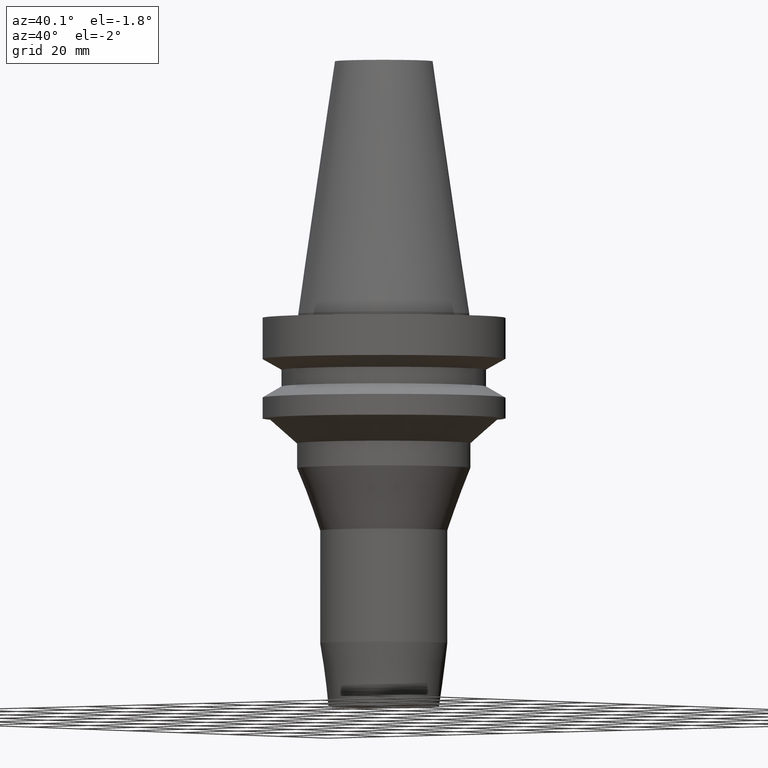
[diagram: clean part render]
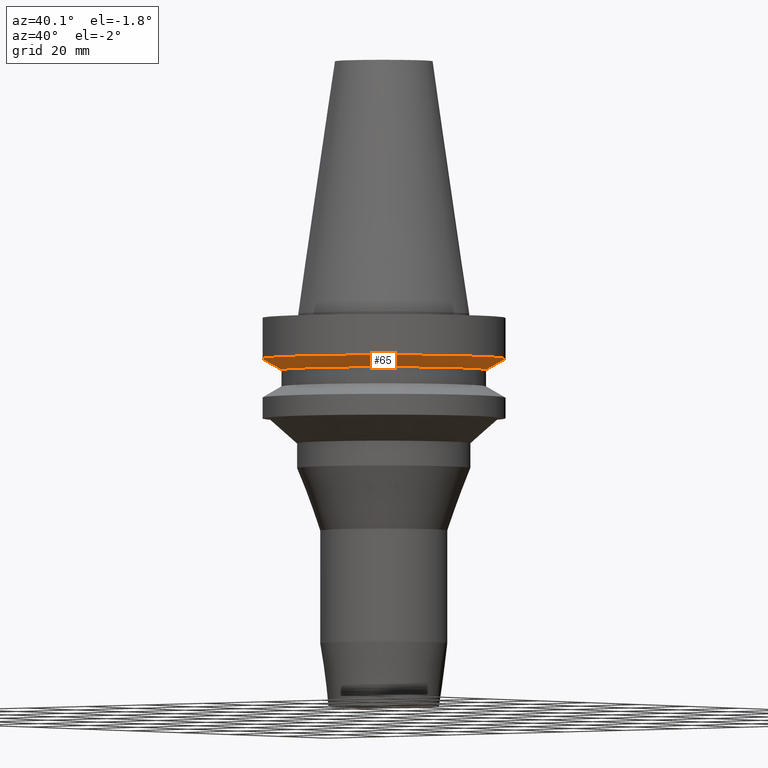
[diagram: same view with one face highlighted and labeled with its STEP entity id]
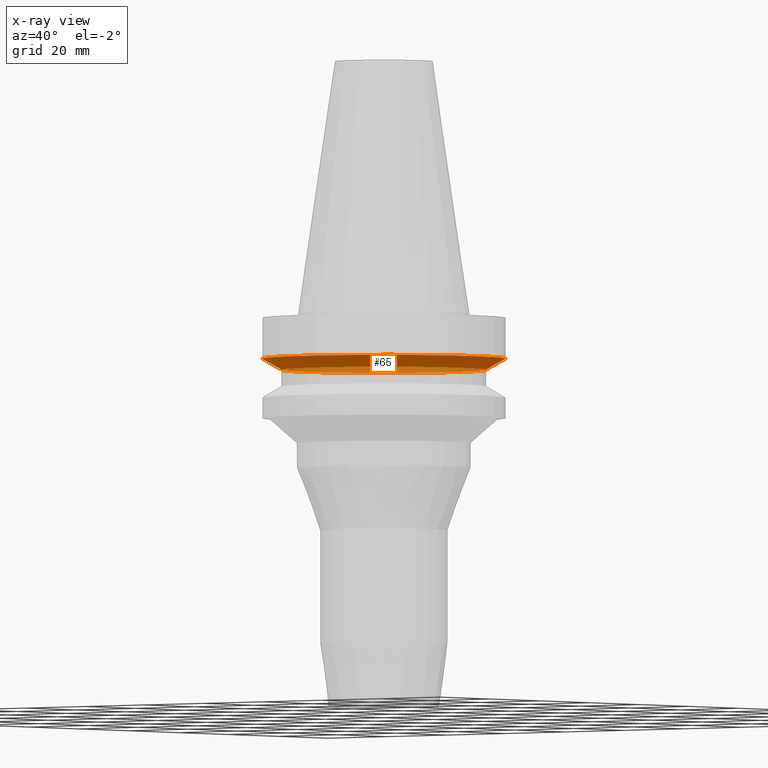
[diagram: x-ray of the same camera — body ghosted, the highlighted face saturated]
A machine part, auxiliary view. The second image highlights one B-rep face of the part: STEP entity #65.
The next image is the same camera in x-ray: the body ghosted, the highlighted face saturated — about 27% of this face is hidden behind the body in this view.
In plain terms, the highlighted conical surface has half-angle 60 deg.
Its self-contained STEP definition (entity closure, byte-faithful):
#65=ADVANCED_FACE('Unnamed[1]',(#166,#167),#168,.T.);
#99=EDGE_CURVE('Unnamed[1]',#219,#219,#220,.T.);
#127=EDGE_CURVE('Unnamed[1]',#263,#263,#264,.T.);
#166=FACE_BOUND('',#302,.T.);
#167=FACE_BOUND('',#303,.T.);
#168=CONICAL_SURFACE('',#304,28.9999999999999,1.04719755119657);
#219=VERTEX_POINT('',#367);
#220=CIRCLE('',#368,31.5000000000003);
#263=VERTEX_POINT('',#423);
#264=CIRCLE('',#424,26.4999999999994);
#302=EDGE_LOOP('',(#457));
#303=EDGE_LOOP('',(#458));
#304=AXIS2_PLACEMENT_3D('',#459,#460,#461);
#367=CARTESIAN_POINT('',(7.08182973902924E-016,31.5000000000004,-11.5655056526664));
#368=AXIS2_PLACEMENT_3D('',#516,#517,#518);
#423=CARTESIAN_POINT('',(8.8494551369045E-016,26.4999999999995,-14.4522569986152));
#424=AXIS2_PLACEMENT_3D('',#564,#565,#566);
#457=ORIENTED_EDGE('',*,*,#127,.F.);
#458=ORIENTED_EDGE('',*,*,#99,.T.);
#459=CARTESIAN_POINT('',(7.96564243796687E-016,3.35028872652235E-014,-13.0088813256408));
#460=DIRECTION('',(-6.12323399573677E-017,5.49881288585027E-016,1.0));
#461=DIRECTION('',(2.88433652680609E-032,1.0,-5.49881288585027E-016));
#516=CARTESIAN_POINT('',(7.08182973902923E-016,3.42965725401909E-014,-11.5655056526663));
#517=DIRECTION('',(6.12323399573677E-017,-5.49881288585042E-016,-1.0));
#518=DIRECTION('',(2.88433652680691E-032,1.0,-5.49881288585042E-016));
#564=CARTESIAN_POINT('',(8.84945513690449E-016,3.27092019902561E-014,-14.4522569986152));
#565=DIRECTION('',(6.12323399573677E-017,-5.4988128858501E-016,-1.0));
#566=DIRECTION('',(2.88433652680647E-032,1.0,-5.4988128858501E-016));